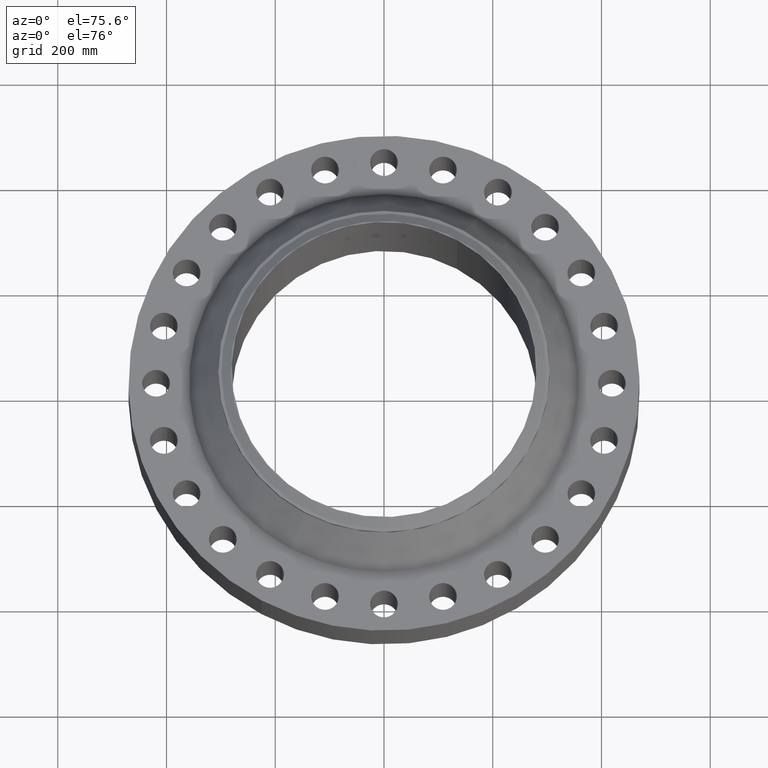
[diagram: clean part render]
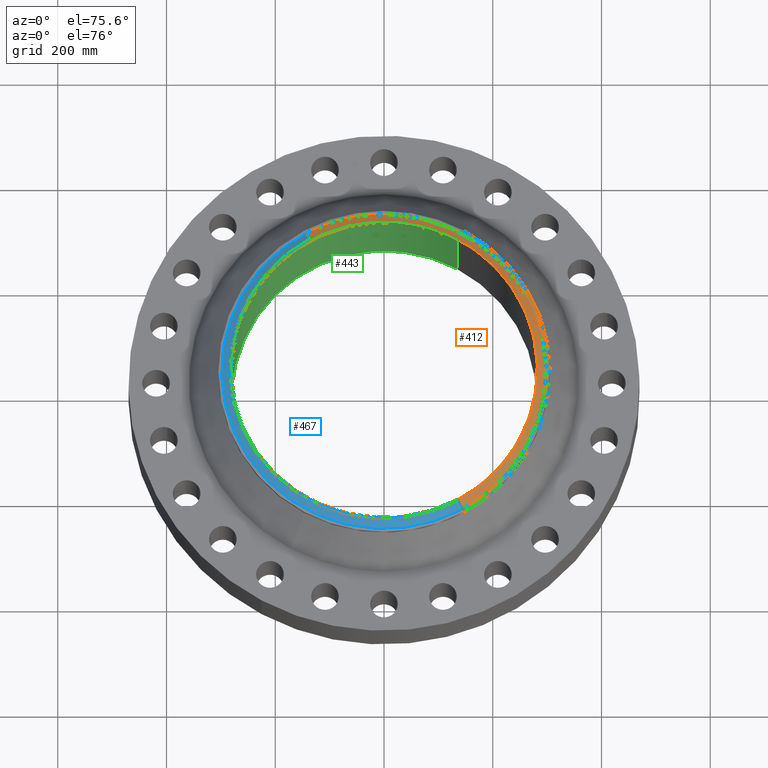
[diagram: same view with three faces highlighted in distinct colors, each labeled with its STEP entity id]
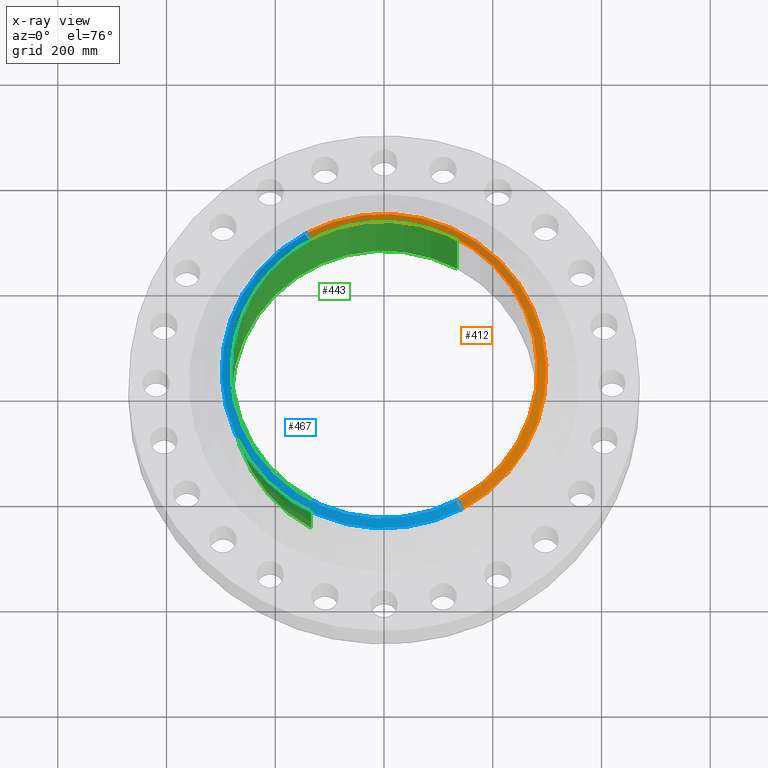
[diagram: x-ray of the same camera — body ghosted, the three highlighted faces saturated]
A machine part, auxiliary view with three faces highlighted in distinct colors.
The next image is the same camera in x-ray (body ghosted, the three faces saturated) — at least one of them is partly hidden behind the body in this view.
Their STEP definitions:

[orange] entity #412 — the highlighted conical surface has half-angle 52.5 deg.
#347=AXIS2_PLACEMENT_3D('Circle Axis2P3D',#345,#346,$) ;
#385=AXIS2_PLACEMENT_3D('Cone Axis2P3D',#382,#383,#384) ;
#396=AXIS2_PLACEMENT_3D('Circle Axis2P3D',#394,#395,$) ;
#345=CARTESIAN_POINT('Axis2P3D Location',(0.,0.,8.00000000003)) ;
#349=CARTESIAN_POINT('Vertex',(5.32629315877,-9.74971422938,8.00000000003)) ;
#351=CARTESIAN_POINT('Vertex',(-5.32629315877,9.74971422938,8.00000000003)) ;
#382=CARTESIAN_POINT('Axis2P3D Location',(0.,0.,8.00000000003)) ;
#387=CARTESIAN_POINT('Line Origine',(5.48123446132,-10.0333323813,7.7520143726)) ;
#391=CARTESIAN_POINT('Vertex',(5.63617576387,-10.3169505332,7.50402874516)) ;
#394=CARTESIAN_POINT('Axis2P3D Location',(0.,0.,7.50402874516)) ;
#398=CARTESIAN_POINT('Vertex',(-5.63617576387,10.3169505332,7.50402874516)) ;
#401=CARTESIAN_POINT('Line Origine',(-5.48123446132,10.0333323813,7.7520143726)) ;
#346=DIRECTION('Axis2P3D Direction',(0.,0.,-0.0393700787402)) ;
#383=DIRECTION('Axis2P3D Direction',(-0.,-0.,-0.0393700787402)) ;
#384=DIRECTION('Axis2P3D XDirection',(0.0188750212049,-0.0345504945626,0.)) ;
#388=DIRECTION('Vector Direction',(0.014974561121,-0.02741075027,-0.023966985394)) ;
#395=DIRECTION('Axis2P3D Direction',(0.,0.,-0.0393700787402)) ;
#402=DIRECTION('Vector Direction',(-0.014974561121,0.02741075027,-0.023966985394)) ;
#389=VECTOR('Line Direction',#388,0.0393700787402) ;
#403=VECTOR('Line Direction',#402,0.0393700787402) ;
#407=ORIENTED_EDGE('',*,*,#353,.F.) ;
#408=ORIENTED_EDGE('',*,*,#393,.T.) ;
#409=ORIENTED_EDGE('',*,*,#400,.T.) ;
#410=ORIENTED_EDGE('',*,*,#405,.F.) ;
#412=ADVANCED_FACE('PartBody',(#411),#386,.T.) ;
#348=CIRCLE('generated circle',#347,11.1097401575) ;
#397=CIRCLE('generated circle',#396,11.7561024811) ;
#386=CONICAL_SURFACE('Cone',#385,11.1097401575,0.916297857297) ;
#353=EDGE_CURVE('',#350,#352,#348,.F.) ;
#393=EDGE_CURVE('',#350,#392,#390,.T.) ;
#400=EDGE_CURVE('',#392,#399,#397,.F.) ;
#405=EDGE_CURVE('',#352,#399,#404,.T.) ;
#406=EDGE_LOOP('',(#407,#408,#409,#410)) ;
#411=FACE_OUTER_BOUND('',#406,.T.) ;
#390=LINE('Line',#387,#389) ;
#404=LINE('Line',#401,#403) ;
#350=VERTEX_POINT('',#349) ;
#352=VERTEX_POINT('',#351) ;
#392=VERTEX_POINT('',#391) ;
#399=VERTEX_POINT('',#398) ;

[blue] entity #467 — the highlighted conical surface has half-angle 52.5 deg.
#356=AXIS2_PLACEMENT_3D('Circle Axis2P3D',#354,#355,$) ;
#385=AXIS2_PLACEMENT_3D('Cone Axis2P3D',#382,#383,#384) ;
#458=AXIS2_PLACEMENT_3D('Circle Axis2P3D',#456,#457,$) ;
#349=CARTESIAN_POINT('Vertex',(5.32629315877,-9.74971422938,8.00000000003)) ;
#351=CARTESIAN_POINT('Vertex',(-5.32629315877,9.74971422938,8.00000000003)) ;
#354=CARTESIAN_POINT('Axis2P3D Location',(0.,0.,8.00000000003)) ;
#382=CARTESIAN_POINT('Axis2P3D Location',(0.,0.,8.00000000003)) ;
#387=CARTESIAN_POINT('Line Origine',(5.48123446132,-10.0333323813,7.7520143726)) ;
#391=CARTESIAN_POINT('Vertex',(5.63617576387,-10.3169505332,7.50402874516)) ;
#398=CARTESIAN_POINT('Vertex',(-5.63617576387,10.3169505332,7.50402874516)) ;
#401=CARTESIAN_POINT('Line Origine',(-5.48123446132,10.0333323813,7.7520143726)) ;
#456=CARTESIAN_POINT('Axis2P3D Location',(0.,0.,7.50402874516)) ;
#355=DIRECTION('Axis2P3D Direction',(0.,0.,-0.0393700787402)) ;
#383=DIRECTION('Axis2P3D Direction',(-0.,-0.,-0.0393700787402)) ;
#384=DIRECTION('Axis2P3D XDirection',(0.0188750212049,-0.0345504945626,0.)) ;
#388=DIRECTION('Vector Direction',(0.014974561121,-0.02741075027,-0.023966985394)) ;
#402=DIRECTION('Vector Direction',(-0.014974561121,0.02741075027,-0.023966985394)) ;
#457=DIRECTION('Axis2P3D Direction',(0.,0.,-0.0393700787402)) ;
#389=VECTOR('Line Direction',#388,0.0393700787402) ;
#403=VECTOR('Line Direction',#402,0.0393700787402) ;
#462=ORIENTED_EDGE('',*,*,#358,.F.) ;
#463=ORIENTED_EDGE('',*,*,#405,.T.) ;
#464=ORIENTED_EDGE('',*,*,#460,.T.) ;
#465=ORIENTED_EDGE('',*,*,#393,.F.) ;
#467=ADVANCED_FACE('PartBody',(#466),#386,.T.) ;
#357=CIRCLE('generated circle',#356,11.1097401575) ;
#459=CIRCLE('generated circle',#458,11.7561024811) ;
#386=CONICAL_SURFACE('Cone',#385,11.1097401575,0.916297857297) ;
#358=EDGE_CURVE('',#352,#350,#357,.F.) ;
#393=EDGE_CURVE('',#350,#392,#390,.T.) ;
#405=EDGE_CURVE('',#352,#399,#404,.T.) ;
#460=EDGE_CURVE('',#399,#392,#459,.F.) ;
#461=EDGE_LOOP('',(#462,#463,#464,#465)) ;
#466=FACE_OUTER_BOUND('',#461,.T.) ;
#390=LINE('Line',#387,#389) ;
#404=LINE('Line',#401,#403) ;
#350=VERTEX_POINT('',#349) ;
#352=VERTEX_POINT('',#351) ;
#392=VERTEX_POINT('',#391) ;
#399=VERTEX_POINT('',#398) ;

[green] entity #443 — the highlighted cylindrical surface (partial cylindrical patch) has radius 280.187 mm, axis along (0, 0, -1).
#365=AXIS2_PLACEMENT_3D('Circle Axis2P3D',#363,#364,$) ;
#416=AXIS2_PLACEMENT_3D('Cylinder Axis2P3D',#413,#414,#415) ;
#427=AXIS2_PLACEMENT_3D('Circle Axis2P3D',#425,#426,$) ;
#363=CARTESIAN_POINT('Axis2P3D Location',(0.,0.,8.00000000003)) ;
#367=CARTESIAN_POINT('Vertex',(-5.28854311636,-9.68061324025,8.00000000003)) ;
#369=CARTESIAN_POINT('Vertex',(5.28854311636,9.68061324025,8.00000000003)) ;
#413=CARTESIAN_POINT('Axis2P3D Location',(0.,0.,3.78100000002)) ;
#418=CARTESIAN_POINT('Line Origine',(-5.28854311636,-9.68061324025,3.78100000002)) ;
#422=CARTESIAN_POINT('Vertex',(-5.28854311636,-9.68061324025,-0.438000000002)) ;
#425=CARTESIAN_POINT('Axis2P3D Location',(0.,0.,-0.438000000002)) ;
#429=CARTESIAN_POINT('Vertex',(5.28854311636,9.68061324025,-0.438000000002)) ;
#432=CARTESIAN_POINT('Line Origine',(5.28854311636,9.68061324025,3.78100000002)) ;
#364=DIRECTION('Axis2P3D Direction',(0.,0.,-0.0393700787402)) ;
#414=DIRECTION('Axis2P3D Direction',(0.,0.,-0.0393700787402)) ;
#415=DIRECTION('Axis2P3D XDirection',(0.0188750212049,0.0345504945626,0.)) ;
#419=DIRECTION('Vector Direction',(0.,0.,-0.0393700787402)) ;
#426=DIRECTION('Axis2P3D Direction',(0.,0.,-0.0393700787402)) ;
#433=DIRECTION('Vector Direction',(0.,0.,-0.0393700787402)) ;
#420=VECTOR('Line Direction',#419,0.0393700787402) ;
#434=VECTOR('Line Direction',#433,0.0393700787402) ;
#438=ORIENTED_EDGE('',*,*,#371,.F.) ;
#439=ORIENTED_EDGE('',*,*,#424,.T.) ;
#440=ORIENTED_EDGE('',*,*,#431,.T.) ;
#441=ORIENTED_EDGE('',*,*,#436,.F.) ;
#443=ADVANCED_FACE('PartBody',(#442),#417,.F.) ;
#366=CIRCLE('generated circle',#365,11.031) ;
#428=CIRCLE('generated circle',#427,11.031) ;
#417=CYLINDRICAL_SURFACE('generated cylinder',#416,11.031) ;
#371=EDGE_CURVE('',#368,#370,#366,.T.) ;
#424=EDGE_CURVE('',#368,#423,#421,.T.) ;
#431=EDGE_CURVE('',#423,#430,#428,.T.) ;
#436=EDGE_CURVE('',#370,#430,#435,.T.) ;
#437=EDGE_LOOP('',(#438,#439,#440,#441)) ;
#442=FACE_OUTER_BOUND('',#437,.T.) ;
#421=LINE('Line',#418,#420) ;
#435=LINE('Line',#432,#434) ;
#368=VERTEX_POINT('',#367) ;
#370=VERTEX_POINT('',#369) ;
#423=VERTEX_POINT('',#422) ;
#430=VERTEX_POINT('',#429) ;